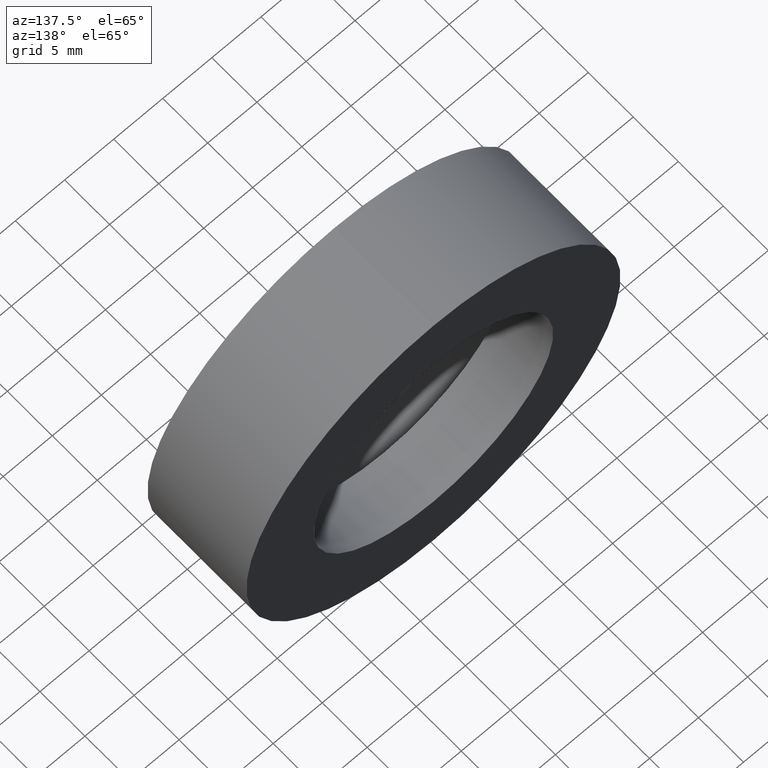
[diagram: clean part render]
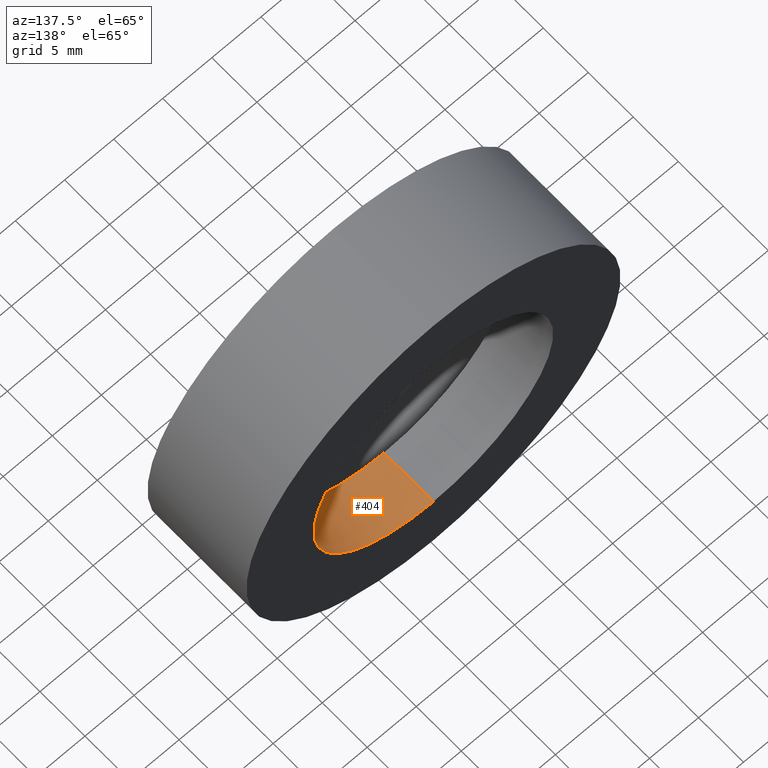
[diagram: same view with one face highlighted and labeled with its STEP entity id]
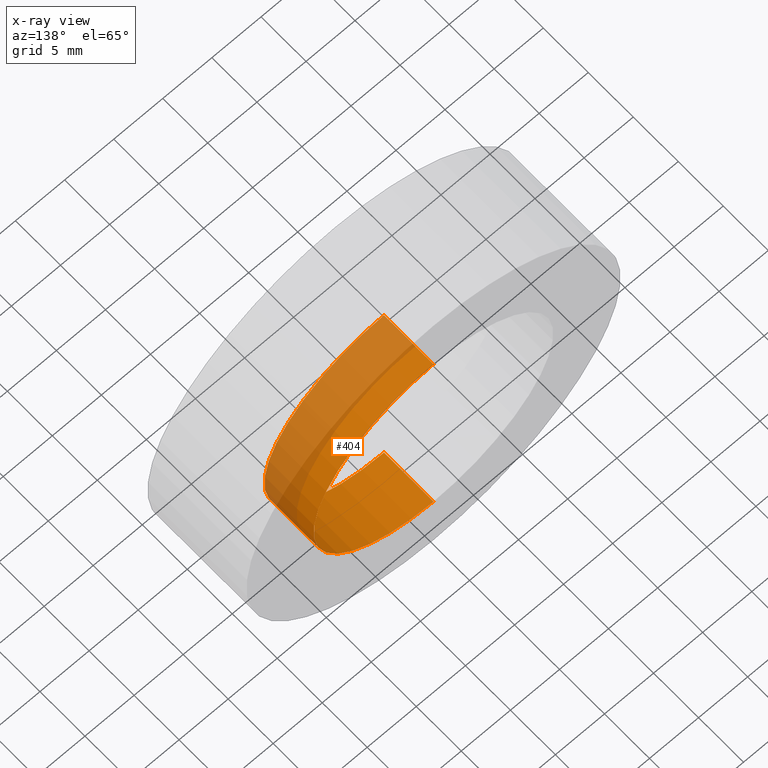
[diagram: x-ray of the same camera — body ghosted, the highlighted face saturated]
A machine part, auxiliary view. The second image highlights one B-rep face of the part: STEP entity #404.
The next image is the same camera in x-ray: the body ghosted, the highlighted face saturated — about 43% of this face is hidden behind the body in this view.
In plain terms, the highlighted cylindrical surface (partial cylindrical patch) has radius 12.2 mm, axis along (-0, 1, -0).
Its self-contained STEP definition (entity closure, byte-faithful):
#7 = CIRCLE ( 'NONE', #50, 12.20000000000000600 ) ;
#21 = VECTOR ( 'NONE', #107, 1000.000000000000000 ) ;
#32 = CARTESIAN_POINT ( 'NONE',  ( 1.494069094959771600E-015, 10.99999999999999600, -12.20000000000000600 ) ) ;
#33 = LINE ( 'NONE', #279, #21 ) ;
#36 = DIRECTION ( 'NONE',  ( -0.0000000000000000000, 1.000000000000000000, -0.0000000000000000000 ) ) ;
#50 = AXIS2_PLACEMENT_3D ( 'NONE', #392, #147, #80 ) ;
#51 = CARTESIAN_POINT ( 'NONE',  ( 1.494069094959771600E-015, 60.02082041425541100, -12.20000000000000600 ) ) ;
#54 = VECTOR ( 'NONE', #409, 1000.000000000000000 ) ;
#80 = DIRECTION ( 'NONE',  ( 0.0000000000000000000, 0.0000000000000000000, 1.000000000000000000 ) ) ;
#94 = LINE ( 'NONE', #51, #54 ) ;
#107 = DIRECTION ( 'NONE',  ( -0.0000000000000000000, 1.000000000000000000, -0.0000000000000000000 ) ) ;
#121 = CIRCLE ( 'NONE', #359, 12.20000000000000600 ) ;
#130 = EDGE_CURVE ( 'NONE', #156, #158, #94, .T. ) ;
#132 = DIRECTION ( 'NONE',  ( -0.0000000000000000000, 1.000000000000000000, -0.0000000000000000000 ) ) ;
#140 = CARTESIAN_POINT ( 'NONE',  ( 0.0000000000000000000, 10.99999999999999600, 0.0000000000000000000 ) ) ;
#147 = DIRECTION ( 'NONE',  ( -0.0000000000000000000, 1.000000000000000000, -0.0000000000000000000 ) ) ;
#156 = VERTEX_POINT ( 'NONE', #205 ) ;
#158 = VERTEX_POINT ( 'NONE', #32 ) ;
#162 = ORIENTED_EDGE ( 'NONE', *, *, #130, .F. ) ;
#170 = VERTEX_POINT ( 'NONE', #418 ) ;
#177 = AXIS2_PLACEMENT_3D ( 'NONE', #349, #36, #213 ) ;
#191 = FACE_OUTER_BOUND ( 'NONE', #255, .T. ) ;
#205 = CARTESIAN_POINT ( 'NONE',  ( 1.494069094959771600E-015, 5.499999999999998200, -12.20000000000000600 ) ) ;
#213 = DIRECTION ( 'NONE',  ( 0.0000000000000000000, 0.0000000000000000000, 1.000000000000000000 ) ) ;
#243 = ORIENTED_EDGE ( 'NONE', *, *, #319, .F. ) ;
#255 = EDGE_LOOP ( 'NONE', ( #162, #243, #308, #327 ) ) ;
#279 = CARTESIAN_POINT ( 'NONE',  ( 0.0000000000000000000, 60.02082041425541100, 12.20000000000000600 ) ) ;
#295 = CYLINDRICAL_SURFACE ( 'NONE', #177, 12.20000000000000600 ) ;
#308 = ORIENTED_EDGE ( 'NONE', *, *, #342, .T. ) ;
#319 = EDGE_CURVE ( 'NONE', #170, #156, #7, .T. ) ;
#327 = ORIENTED_EDGE ( 'NONE', *, *, #414, .T. ) ;
#342 = EDGE_CURVE ( 'NONE', #170, #380, #33, .T. ) ;
#343 = CARTESIAN_POINT ( 'NONE',  ( 0.0000000000000000000, 10.99999999999999600, 12.20000000000000600 ) ) ;
#349 = CARTESIAN_POINT ( 'NONE',  ( 0.0000000000000000000, 60.02082041425541100, 0.0000000000000000000 ) ) ;
#359 = AXIS2_PLACEMENT_3D ( 'NONE', #140, #132, #398 ) ;
#380 = VERTEX_POINT ( 'NONE', #343 ) ;
#392 = CARTESIAN_POINT ( 'NONE',  ( 0.0000000000000000000, 5.499999999999998200, 0.0000000000000000000 ) ) ;
#398 = DIRECTION ( 'NONE',  ( 0.0000000000000000000, 0.0000000000000000000, 1.000000000000000000 ) ) ;
#404 = ADVANCED_FACE ( 'NONE', ( #191 ), #295, .F. ) ;
#409 = DIRECTION ( 'NONE',  ( -0.0000000000000000000, 1.000000000000000000, -0.0000000000000000000 ) ) ;
#414 = EDGE_CURVE ( 'NONE', #380, #158, #121, .T. ) ;
#418 = CARTESIAN_POINT ( 'NONE',  ( 0.0000000000000000000, 5.499999999999998200, 12.20000000000000600 ) ) ;